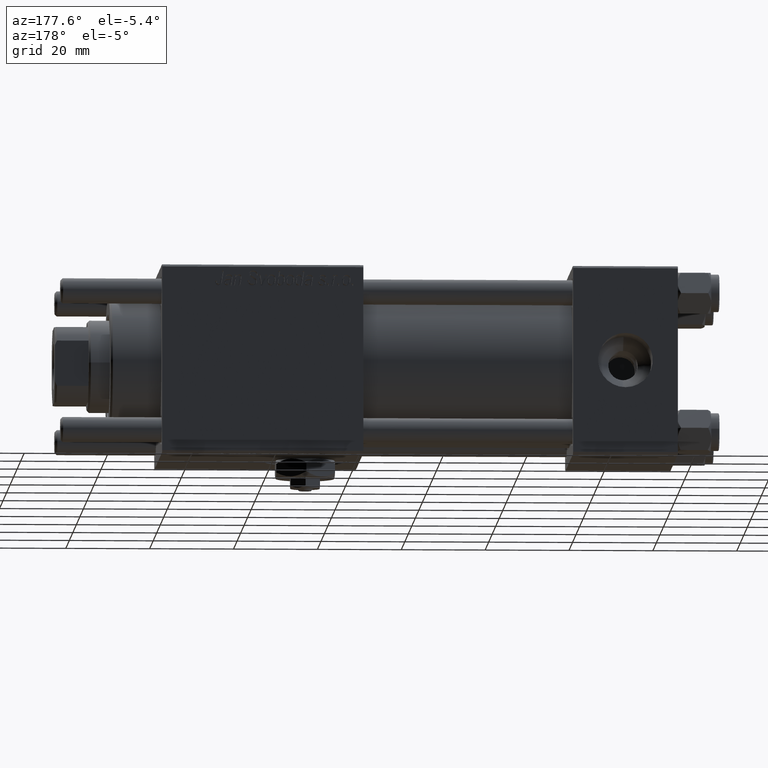
[diagram: clean part render]
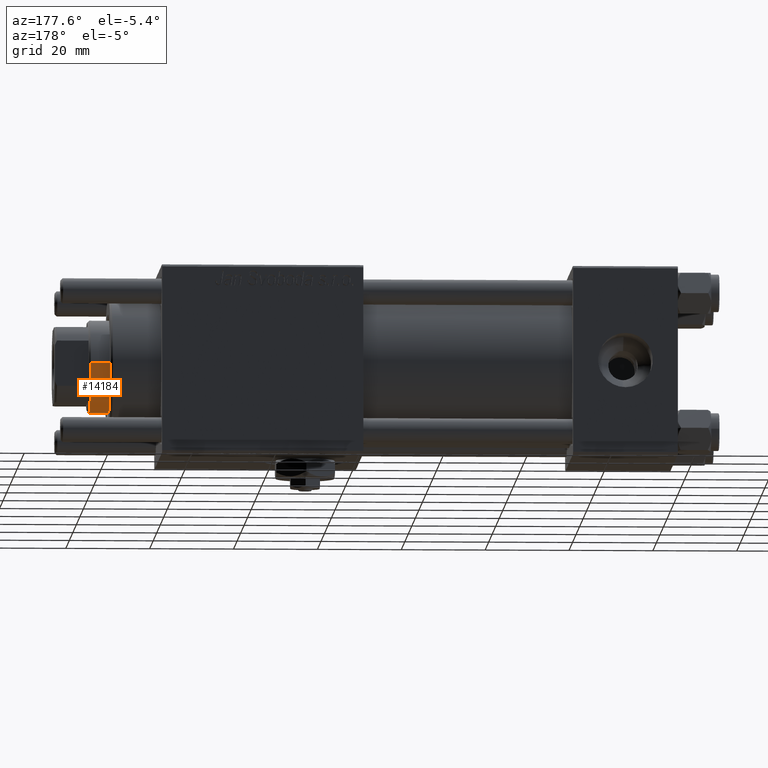
[diagram: same view with one face highlighted and labeled with its STEP entity id]
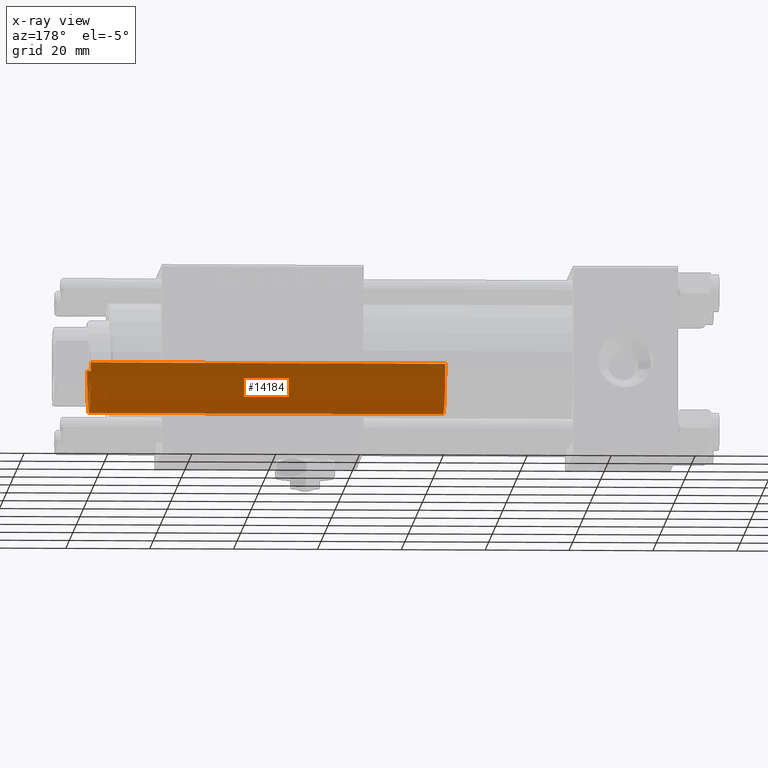
[diagram: x-ray of the same camera — body ghosted, the highlighted face saturated]
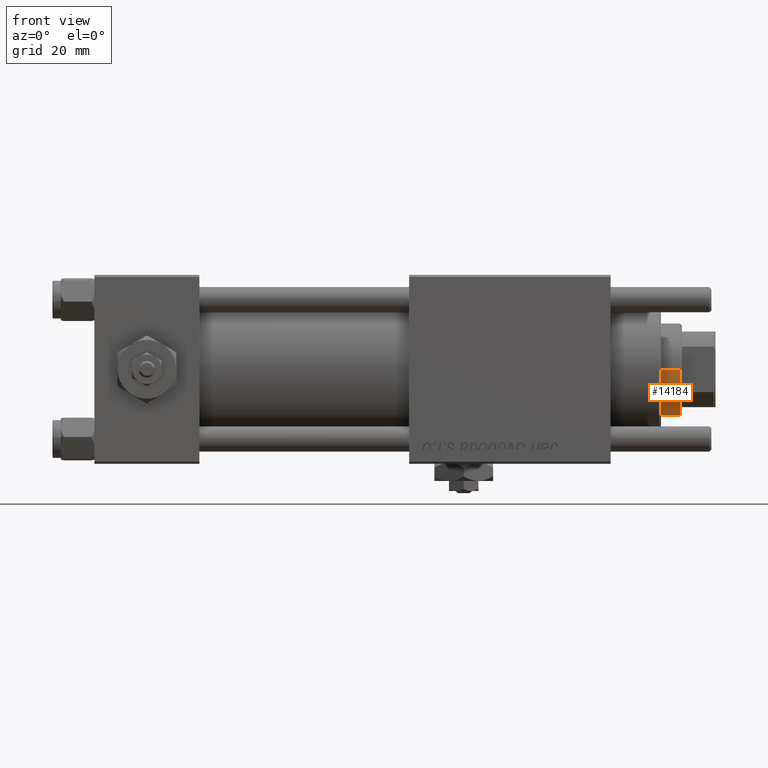
[diagram: same view with one face highlighted and labeled with its STEP entity id]
A machine part, auxiliary view. The second image highlights one B-rep face of the part: STEP entity #14184.
The next image is the same camera in x-ray: the body ghosted, the highlighted face saturated — about 5% of this face is hidden behind the body in this view.
A second angle (front view) of the same face is appended — the face is thin or edge-on in the first view.
In plain terms, the highlighted cylindrical surface (partial cylindrical patch) has radius 11 mm, axis along (-1, 0, 0).
Its self-contained STEP definition (entity closure, byte-faithful):
#2201 = DIRECTION ( 'NONE',  ( 1.000000000000000000, 0.000000000000000000, 0.000000000000000000 ) ) ;
#3027 = VERTEX_POINT ( 'NONE', #21246 ) ;
#3316 = FACE_OUTER_BOUND ( 'NONE', #50954, .T. ) ;
#5251 = EDGE_CURVE ( 'NONE', #10685, #38880, #48641, .T. ) ;
#6270 = CARTESIAN_POINT ( 'NONE',  ( 11.00000000000000000, 1.347111479062088405E-15, 114.5000000000000142 ) ) ;
#7175 = DIRECTION ( 'NONE',  ( -0.000000000000000000, -0.000000000000000000, -1.000000000000000000 ) ) ;
#10602 = ORIENTED_EDGE ( 'NONE', *, *, #41017, .T. ) ;
#10685 = VERTEX_POINT ( 'NONE', #15112 ) ;
#11961 = CARTESIAN_POINT ( 'NONE',  ( -11.00000000000000000, 0.000000000000000000, 115.0000000000000000 ) ) ;
#14184 = ADVANCED_FACE ( 'NONE', ( #3316 ), #21443, .T. ) ;
#15112 = CARTESIAN_POINT ( 'NONE',  ( 11.00000000000000000, 1.347111479062088405E-15, 30.00000000000000000 ) ) ;
#21246 = CARTESIAN_POINT ( 'NONE',  ( -11.00000000000000000, 0.000000000000000000, 114.5000000000000142 ) ) ;
#21443 = CYLINDRICAL_SURFACE ( 'NONE', #36472, 11.00000000000000000 ) ;
#23428 = ORIENTED_EDGE ( 'NONE', *, *, #37828, .F. ) ;
#24169 = ORIENTED_EDGE ( 'NONE', *, *, #5251, .T. ) ;
#24577 = CIRCLE ( 'NONE', #27403, 11.00000000000000000 ) ;
#27403 = AXIS2_PLACEMENT_3D ( 'NONE', #51812, #33683, #56268 ) ;
#28968 = DIRECTION ( 'NONE',  ( 0.000000000000000000, 0.000000000000000000, 1.000000000000000000 ) ) ;
#29256 = CARTESIAN_POINT ( 'NONE',  ( 0.000000000000000000, 0.000000000000000000, 30.00000000000000000 ) ) ;
#29536 = CARTESIAN_POINT ( 'NONE',  ( -11.00000000000000000, 0.000000000000000000, 30.00000000000000000 ) ) ;
#29775 = LINE ( 'NONE', #43438, #39479 ) ;
#33683 = DIRECTION ( 'NONE',  ( 0.000000000000000000, 0.000000000000000000, -1.000000000000000000 ) ) ;
#34555 = LINE ( 'NONE', #11961, #46040 ) ;
#35411 = DIRECTION ( 'NONE',  ( -0.000000000000000000, -0.000000000000000000, -1.000000000000000000 ) ) ;
#36472 = AXIS2_PLACEMENT_3D ( 'NONE', #39593, #35411, #48774 ) ;
#37828 = EDGE_CURVE ( 'NONE', #3027, #38880, #34555, .T. ) ;
#38880 = VERTEX_POINT ( 'NONE', #29536 ) ;
#39479 = VECTOR ( 'NONE', #7175, 1000.000000000000000 ) ;
#39593 = CARTESIAN_POINT ( 'NONE',  ( 0.000000000000000000, 0.000000000000000000, 115.0000000000000000 ) ) ;
#41017 = EDGE_CURVE ( 'NONE', #56228, #10685, #29775, .T. ) ;
#43438 = CARTESIAN_POINT ( 'NONE',  ( 11.00000000000000000, 1.347111479062088405E-15, 115.0000000000000000 ) ) ;
#46040 = VECTOR ( 'NONE', #48221, 1000.000000000000000 ) ;
#46755 = AXIS2_PLACEMENT_3D ( 'NONE', #29256, #28968, #2201 ) ;
#48221 = DIRECTION ( 'NONE',  ( -0.000000000000000000, -0.000000000000000000, -1.000000000000000000 ) ) ;
#48641 = CIRCLE ( 'NONE', #46755, 11.00000000000000000 ) ;
#48774 = DIRECTION ( 'NONE',  ( -1.000000000000000000, 0.000000000000000000, 0.000000000000000000 ) ) ;
#50954 = EDGE_LOOP ( 'NONE', ( #58527, #10602, #24169, #23428 ) ) ;
#51812 = CARTESIAN_POINT ( 'NONE',  ( 0.000000000000000000, 0.000000000000000000, 114.5000000000000142 ) ) ;
#54029 = EDGE_CURVE ( 'NONE', #3027, #56228, #24577, .T. ) ;
#56228 = VERTEX_POINT ( 'NONE', #6270 ) ;
#56268 = DIRECTION ( 'NONE',  ( 1.000000000000000000, 0.000000000000000000, 0.000000000000000000 ) ) ;
#58527 = ORIENTED_EDGE ( 'NONE', *, *, #54029, .T. ) ;